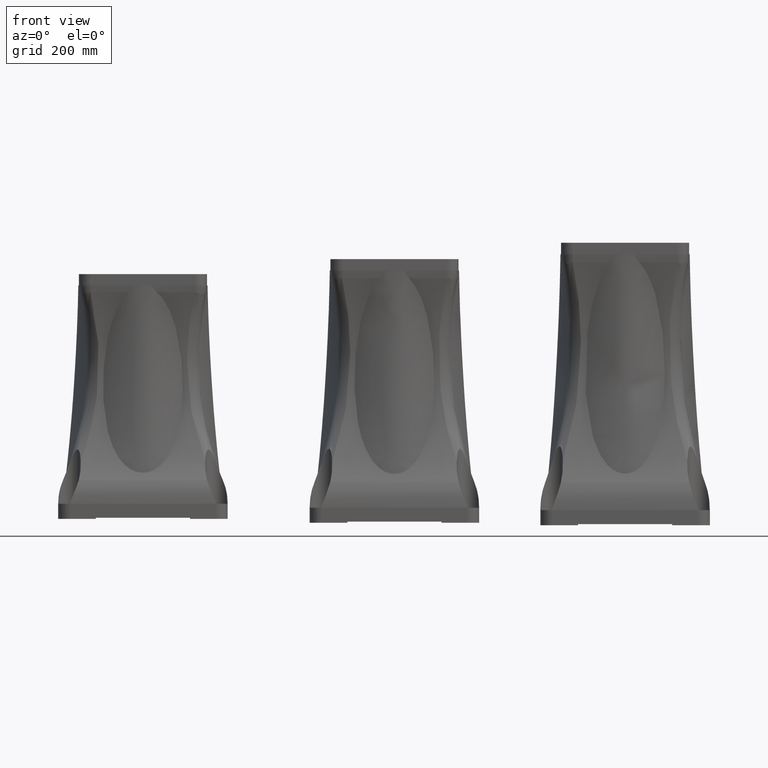
[diagram: clean part render]
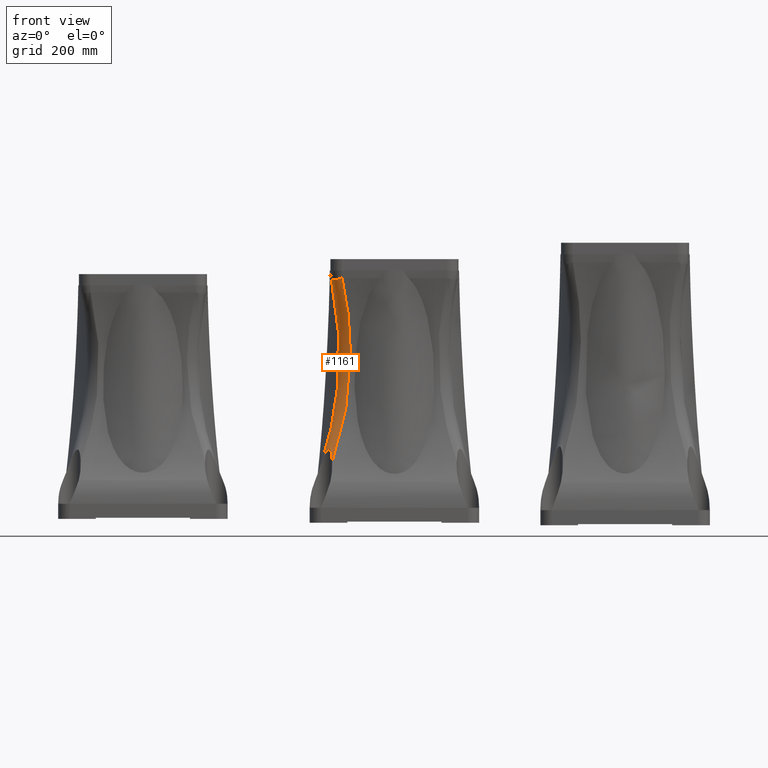
[diagram: same view with one face highlighted and labeled with its STEP entity id]
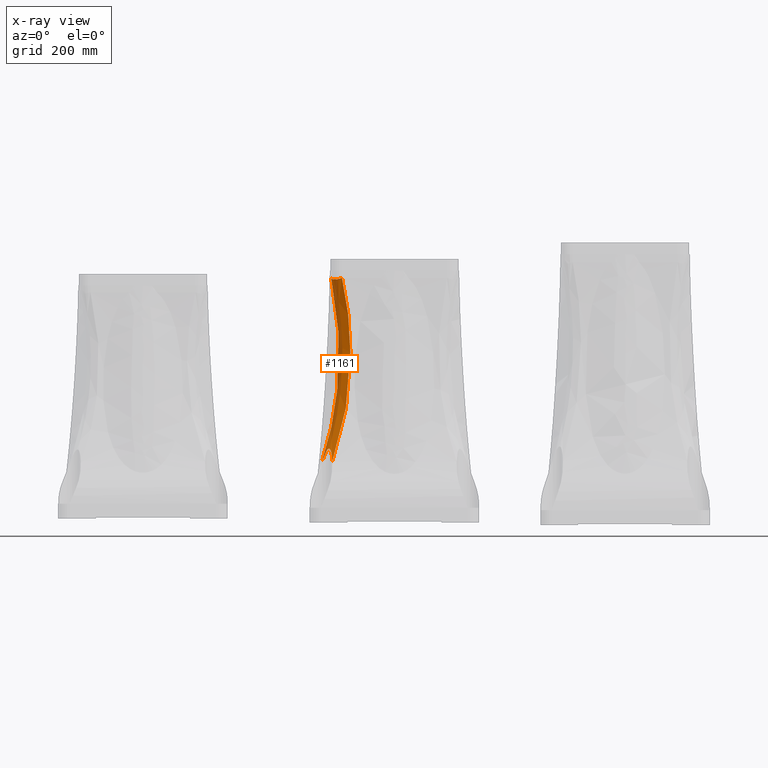
[diagram: x-ray of the same camera — body ghosted, the highlighted face saturated]
A machine part, front view. The second image highlights one B-rep face of the part: STEP entity #1161.
The next image is the same camera in x-ray: the body ghosted, the highlighted face saturated — about 0% of this face is hidden behind the body in this view.
In plain terms, the highlighted face is a freeform B-spline surface patch.
Its self-contained STEP definition (entity closure, byte-faithful):
#1161=ADVANCED_FACE('',(#1954),#1955,.T.);
#1954=FACE_OUTER_BOUND('',#5366,.T.);
#1955=(B_SPLINE_SURFACE(3,2,((#5368,#5369,#5370),(#5371,#5372,#5373),(#5374,#5375,#5376),(#5377,#5378,#5379),(#5380,#5381,#5382),(#5383,#5384,#5385),(#5386,#5387,#5388),(#5389,#5390,#5391),(#5392,#5393,#5394),(#5395,#5396,#5397),(#5398,#5399,#5400),(#5401,#5402,#5403),(#5404,#5405,#5406),(#5407,#5408,#5409),(#5410,#5411,#5412),(#5413,#5414,#5415),(#5416,#5417,#5418),(#5419,#5420,#5421)),.UNSPECIFIED.,.F.,.F.,.F.)B_SPLINE_SURFACE_WITH_KNOTS((4,2,2,2,2,2,2,2,4),(3,3),(2.85118516163704,2.94171701502913,3.03224886842121,3.1227807218133,3.21331257520538,3.30384442859746,3.39437628198955,3.48490813538164,3.57543998877372),(0.0,1.0),.UNSPECIFIED.)RATIONAL_B_SPLINE_SURFACE(((1.0,0.735524346726946,1.0),(1.0,0.729895245384475,1.0),(1.0,0.724982392740446,1.0),(1.0,0.716836658748623,1.0),(1.0,0.713605633498388,1.0),(1.0,0.709003582062472,1.0),(1.0,0.707633127838038,1.0),(1.0,0.706830620041969,1.0),(1.0,0.707398673173335,1.0),(1.0,0.710441186489719,1.0),(1.0,0.712915253269928,1.0),(1.0,0.719631733579047,1.0),(1.0,0.723873378671773,1.0),(1.0,0.733898931885056,1.0),(1.0,0.739681912317829,1.0),(1.0,0.75250234208449,1.0),(1.0,0.759538584887683,1.0),(1.0,0.76704190525233,1.0)))BOUNDED_SURFACE()REPRESENTATION_ITEM('')GEOMETRIC_REPRESENTATION_ITEM()SURFACE());
#5366=EDGE_LOOP('',(#11788,#11789,#11790,#11791));
#5368=CARTESIAN_POINT('',(38.681636363636,-149.718101010101,1310.30847953715));
#5369=CARTESIAN_POINT('',(40.8598101155103,-176.283745440045,1300.18306664098));
#5370=CARTESIAN_POINT('',(67.4254545454541,-178.461919191919,1310.30847953715));
#5371=CARTESIAN_POINT('',(43.0021749492931,-145.138330108087,1290.22411433168));
#5372=CARTESIAN_POINT('',(44.8238969856286,-172.319658569694,1280.63332829338));
#5373=CARTESIAN_POINT('',(72.0052254482312,-174.141380606326,1290.22411433198));
#5374=CARTESIAN_POINT('',(46.6678271429793,-141.252738784,1269.86803759306));
#5375=CARTESIAN_POINT('',(48.1108398140159,-169.032715741595,1261.15140264555));
#5376=CARTESIAN_POINT('',(75.8908167715553,-170.475728412578,1269.86803759308));
#5377=CARTESIAN_POINT('',(52.6594499233879,-134.901618636761,1228.77863922158));
#5378=CARTESIAN_POINT('',(53.4770108513772,-163.666544704121,1221.97929400054));
#5379=CARTESIAN_POINT('',(82.2419369187939,-164.484105632165,1228.77863922157));
#5380=CARTESIAN_POINT('',(54.9853974439694,-132.436114265423,1208.04543962679));
#5381=CARTESIAN_POINT('',(55.5305415850429,-161.613013970401,1202.37829411545));
#5382=CARTESIAN_POINT('',(84.7074412901318,-162.158158111489,1208.04543962556));
#5383=CARTESIAN_POINT('',(58.2785246490973,-128.945399427036,1166.37176060933));
#5384=CARTESIAN_POINT('',(58.4446915223699,-158.698864033297,1163.02945432093));
#5385=CARTESIAN_POINT('',(88.1981561285189,-158.865030906555,1166.37176061056));
#5386=CARTESIAN_POINT('',(59.2457006479065,-127.920192868113,1145.43132782972));
#5387=CARTESIAN_POINT('',(59.290469493708,-157.853086061958,1143.38188610753));
#5388=CARTESIAN_POINT('',(89.223362687442,-157.897854907648,1145.43132782972));
#5389=CARTESIAN_POINT('',(59.8133601816711,-127.318473763645,1103.51469311311));
#5390=CARTESIAN_POINT('',(59.7900943591624,-157.353461196281,1103.97490039268));
#5391=CARTESIAN_POINT('',(89.8250817919101,-157.330195373884,1103.51469311311));
#5392=CARTESIAN_POINT('',(59.413843081199,-127.741961889649,1082.5385380875));
#5393=CARTESIAN_POINT('',(59.4413269609444,-157.702228594778,1084.32076793338));
#5394=CARTESIAN_POINT('',(89.4015936659058,-157.729712474356,1082.53853808749));
#5395=CARTESIAN_POINT('',(57.2513855738111,-130.03416684715,1040.72226251829));
#5396=CARTESIAN_POINT('',(57.5337292295651,-159.609826325823,1044.93664380621));
#5397=CARTESIAN_POINT('',(87.1093887084047,-159.892169981743,1040.7222625183));
#5398=CARTESIAN_POINT('',(55.4884475869518,-131.902881113051,1019.88218877139));
#5399=CARTESIAN_POINT('',(55.9847700934847,-161.158785461901,1025.30985954175));
#5400=CARTESIAN_POINT('',(85.2406744425042,-161.655107968601,1019.88218877141));
#5401=CARTESIAN_POINT('',(50.6135844736126,-137.070236013861,978.5087652107));
#5402=CARTESIAN_POINT('',(51.6434817187372,-165.500073836986,986.045608574042));
#5403=CARTESIAN_POINT('',(80.0733195416939,-166.529971081945,978.508765210675));
#5404=CARTESIAN_POINT('',(47.5016648031817,-140.368870864367,957.975461702256));
#5405=CARTESIAN_POINT('',(48.8725201396516,-168.271035415788,966.502304868515));
#5406=CARTESIAN_POINT('',(76.7746846911882,-169.641890752148,957.975461703467));
#5407=CARTESIAN_POINT('',(39.9543232609484,-148.369052898765,917.383755873289));
#5408=CARTESIAN_POINT('',(42.0502097699338,-175.093345785735,927.51778076836));
#5409=CARTESIAN_POINT('',(68.7745026567895,-177.189232294832,917.383755872078));
#5410=CARTESIAN_POINT('',(35.5189098360717,-153.070591128724,897.32539898312));
#5411=CARTESIAN_POINT('',(38.0294906340387,-179.114064921575,908.15539610147));
#5412=CARTESIAN_POINT('',(64.0729644268308,-181.624645719187,897.325398984274));
#5413=CARTESIAN_POINT('',(25.3609057634889,-163.838075446851,857.847874011953));
#5414=CARTESIAN_POINT('',(28.6807999599671,-188.46275559553,869.695404720074));
#5415=CARTESIAN_POINT('',(53.3054801087033,-191.782649792363,857.847874010799));
#5416=CARTESIAN_POINT('',(19.6383560424505,-169.90397814956,838.428838748744));
#5417=CARTESIAN_POINT('',(23.3895940935031,-193.753961462234,850.657140619556));
#5418=CARTESIAN_POINT('',(47.2395774063483,-197.505199512894,838.428838749378));
#5419=CARTESIAN_POINT('',(13.2955923422249,-176.627307672796,819.408746809491));
#5420=CARTESIAN_POINT('',(17.3833307548412,-199.760224800713,831.666677911168));
#5421=CARTESIAN_POINT('',(40.5162478827584,-203.84796321333,819.408746809491));
#11788=ORIENTED_EDGE('',*,*,#14921,.F.);
#11789=ORIENTED_EDGE('',*,*,#14853,.T.);
#11790=ORIENTED_EDGE('',*,*,#14891,.F.);
#11791=ORIENTED_EDGE('',*,*,#14860,.T.);
#14853=EDGE_CURVE('',#16412,#16410,#16413,.T.);
#14860=EDGE_CURVE('',#16425,#16418,#16426,.T.);
#14891=EDGE_CURVE('',#16425,#16410,#16479,.F.);
#14921=EDGE_CURVE('',#16412,#16418,#16527,.F.);
#16410=VERTEX_POINT('',#22321);
#16412=VERTEX_POINT('',#22334);
#16413=B_SPLINE_CURVE_WITH_KNOTS('',3,(#22335,#22336,#22337,#22338,#22339,#22340,#22341,#22342,#22343,#22344,#22345,#22346,#22347,#22348,#22349,#22350,#22351,#22352,#22353,#22354,#22355,#22356,#22357,#22358,#22359,#22360,#22361,#22362,#22363,#22364,#22365,#22366,#22367,#22368,#22369,#22370,#22371,#22372,#22373,#22374,#22375,#22376,#22377,#22378,#22379,#22380,#22381,#22382,#22383,#22384,#22385,#22386,#22387,#22388,#22389,#22390,#22391,#22392),.UNSPECIFIED.,.F.,.F.,(4,2,2,2,2,2,2,2,2,2,2,2,2,2,2,2,2,2,2,2,2,2,2,2,2,2,2,2,4),(0.0,0.010518583936833,0.0157778759052497,0.0210371678736663,0.026296459842083,0.0289261058262913,0.0315557518104996,0.034185397794708,0.0368150437789163,0.0381298667710205,0.0394446897631248,0.0401021012591769,0.040759512755229,0.0414169242512811,0.0420743357473333,0.0433891587394375,0.0440465702354896,0.0447039817315417,0.0460188047236459,0.0473336277157501,0.0499632736999586,0.051278096692063,0.0525929196841673,0.0552225656683761,0.0578522116525849,0.0631115036210024,0.0683707955894199,0.0736300875578374,0.0841486714946725),.UNSPECIFIED.);
#16418=VERTEX_POINT('',#22431);
#16425=VERTEX_POINT('',#22468);
#16426=B_SPLINE_CURVE_WITH_KNOTS('',3,(#22469,#22470,#22471,#22472,#22473,#22474,#22475,#22476,#22477,#22478,#22479,#22480,#22481,#22482,#22483,#22484,#22485,#22486),.UNSPECIFIED.,.F.,.F.,(4,2,2,2,2,2,2,2,4),(0.0,0.125,0.25,0.375,0.5,0.625,0.75,0.875,1.0),.UNSPECIFIED.);
#16479=B_SPLINE_CURVE_WITH_KNOTS('',3,(#23326,#23327,#23328,#23329,#23330,#23331,#23332,#23333,#23334,#23335,#23336,#23337,#23338,#23339,#23340,#23341,#23342,#23343,#23344,#23345,#23346,#23347,#23348,#23349,#23350,#23351,#23352,#23353,#23354,#23355,#23356,#23357,#23358,#23359,#23360,#23361,#23362,#23363,#23364,#23365,#23366,#23367,#23368,#23369,#23370,#23371,#23372,#23373,#23374,#23375,#23376,#23377,#23378,#23379,#23380,#23381),.UNSPECIFIED.,.F.,.F.,(4,1,1,1,1,1,1,1,1,1,1,1,1,1,1,1,1,1,1,1,1,1,1,1,1,1,1,1,1,1,1,1,1,1,1,1,1,1,1,1,1,1,1,1,1,1,1,1,1,1,1,1,1,4),(0.0,0.00529063514612186,0.0105765941359454,0.0158578336886446,0.021134310397057,0.0264059807382307,0.0316728010839916,0.0369347277115177,0.0421917168139229,0.0474437245108536,0.0526907068590799,0.0579326198630985,0.0631694194857333,0.0684010616587336,0.0736275022933724,0.0788486972910361,0.084064602553807,0.0892751739950451,0.0944803675499423,0.0996801391860847,0.104874444913981,0.110063240797588,0.115246482964808,0.12042412761798,0.12559613104433,0.157103079480561,0.18848459396079,0.219732594439219,0.25083899095196,0.313499602301707,0.375805432599854,0.438296458357231,0.500596002103906,0.562970844708656,0.625308752241972,0.687619123287236,0.750044433091847,0.781156062052461,0.812342338449727,0.843596467311371,0.874911647566623,0.884469286218178,0.894038484083914,0.903619023651562,0.913210686564056,0.922813253808341,0.932426505904746,0.942050223096839,0.95168418554164,0.96132817350008,0.970981967527611,0.980645348664858,0.990318098628171,1.0),.UNSPECIFIED.);
#16527=B_SPLINE_CURVE_WITH_KNOTS('',3,(#23884,#23885,#23886,#23887,#23888,#23889,#23890,#23891,#23892,#23893,#23894,#23895,#23896,#23897,#23898,#23899,#23900,#23901,#23902,#23903,#23904,#23905,#23906,#23907,#23908,#23909,#23910,#23911,#23912,#23913,#23914,#23915,#23916,#23917,#23918,#23919,#23920,#23921,#23922,#23923,#23924,#23925,#23926,#23927,#23928,#23929,#23930,#23931,#23932,#23933,#23934,#23935,#23936,#23937,#23938,#23939),.UNSPECIFIED.,.F.,.F.,(4,1,1,1,1,1,1,1,1,1,1,1,1,1,1,1,1,1,1,1,1,1,1,1,1,1,1,1,1,1,1,1,1,1,1,1,1,1,1,1,1,1,1,1,1,1,1,1,1,1,1,1,1,4),(0.0,0.00524507726343944,0.0104875340875135,0.0157273361528853,0.020964449047384,0.026198838274836,0.0314304692639054,0.0366593073769448,0.0418853179188581,0.0471084661459542,0.0523287172748197,0.0575460364911792,0.0627603889587683,0.0679717398281932,0.0731800542457994,0.0783852973625244,0.0835874343427515,0.088786430373161,0.093982250671554,0.0991748604956906,0.104364225152096,0.109550310004863,0.11473308048444,0.1199125020964,0.125088540430192,0.156399877880119,0.18765270680406,0.218840256951725,0.249955754647193,0.312375429242257,0.374691434693478,0.43702321753237,0.499404184613704,0.561698089364869,0.62419475447653,0.686495923880842,0.749161196460416,0.780264450922721,0.811511428509262,0.842894004252029,0.874404056200089,0.883956141601567,0.893527433787933,0.903117656510572,0.91272653270966,0.922353784739887,0.93199913459688,0.941662304144203,0.951343015340774,0.961040990468597,0.970755952360631,0.980487624628655,0.990235731891005,1.0),.UNSPECIFIED.);
#22321=CARTESIAN_POINT('',(41.4741390020655,-202.944292346059,822.134007741496));
#22334=CARTESIAN_POINT('',(14.1992632094848,-175.66941655349,822.134007741465));
#22335=CARTESIAN_POINT('',(14.1992603863855,-175.669416306826,822.134008679365));
#22336=CARTESIAN_POINT('',(15.2983976024665,-175.765451912083,825.467695184137));
#22337=CARTESIAN_POINT('',(16.4400714245778,-175.92485403223,828.780951608506));
#22338=CARTESIAN_POINT('',(18.2519105353001,-176.298546756877,833.704136932334));
#22339=CARTESIAN_POINT('',(18.872626414973,-176.445781844506,835.337318407788));
#22340=CARTESIAN_POINT('',(20.1589424287635,-176.798232081403,838.582792699587));
#22341=CARTESIAN_POINT('',(20.8252234425183,-177.003537646271,840.197184800565));
#22342=CARTESIAN_POINT('',(22.2171737899968,-177.491972602533,843.385298173591));
#22343=CARTESIAN_POINT('',(22.9419431259925,-177.774307686806,844.958643087557));
#22344=CARTESIAN_POINT('',(24.0978456492609,-178.285036652444,847.269922547955));
#22345=CARTESIAN_POINT('',(24.4956551096926,-178.470452451431,848.03372140639));
#22346=CARTESIAN_POINT('',(25.3176221445874,-178.877702449305,849.53053797002));
#22347=CARTESIAN_POINT('',(25.7413070476731,-179.099197306261,850.263065808589));
#22348=CARTESIAN_POINT('',(26.6236772037897,-179.590513610198,851.684732237417));
#22349=CARTESIAN_POINT('',(27.0821450881215,-179.860047413281,852.374135233139));
#22350=CARTESIAN_POINT('',(28.0510940391723,-180.469818465352,853.688912932043));
#22351=CARTESIAN_POINT('',(28.5608077728255,-180.809038909561,854.315221577578));
#22352=CARTESIAN_POINT('',(29.3920997604112,-181.407458235636,855.172999697328));
#22353=CARTESIAN_POINT('',(29.6779058193154,-181.620383894868,855.441872922234));
#22354=CARTESIAN_POINT('',(30.2632112100235,-182.07420931563,855.927485482971));
#22355=CARTESIAN_POINT('',(30.5637765521565,-182.315828710187,856.145500847685));
#22356=CARTESIAN_POINT('',(31.030473183364,-182.707547186873,856.423036538811));
#22357=CARTESIAN_POINT('',(31.1888467537419,-182.843203100036,856.507171227001));
#22358=CARTESIAN_POINT('',(31.5050525207422,-183.119977416951,856.653253113084));
#22359=CARTESIAN_POINT('',(31.6636385593568,-183.26171821305,856.715686628183));
#22360=CARTESIAN_POINT('',(31.9818614920844,-183.552445310372,856.817615389194));
#22361=CARTESIAN_POINT('',(32.141498321551,-183.701431041508,856.857112385805));
#22362=CARTESIAN_POINT('',(32.4619177692879,-184.00727004393,856.911184681904));
#22363=CARTESIAN_POINT('',(32.6231487828262,-184.164623258394,856.925568616855));
#22364=CARTESIAN_POINT('',(33.0954226732028,-184.635979905327,856.928970753495));
#22365=CARTESIAN_POINT('',(33.3993604062128,-184.953289338789,856.87936140506));
#22366=CARTESIAN_POINT('',(33.8400188664827,-185.433556142605,856.732523401915));
#22367=CARTESIAN_POINT('',(33.9849112433301,-185.595022378185,856.67109210564));
#22368=CARTESIAN_POINT('',(34.2634503664906,-185.912020521267,856.528603246319));
#22369=CARTESIAN_POINT('',(34.3978939500974,-186.06839140767,856.447389458827));
#22370=CARTESIAN_POINT('',(34.7885309875067,-186.531920885414,856.17754941359));
#22371=CARTESIAN_POINT('',(35.0321097188651,-186.833531230958,855.962887815263));
#22372=CARTESIAN_POINT('',(35.4925208188836,-187.425074046765,855.478502275391));
#22373=CARTESIAN_POINT('',(35.7061707596332,-187.710961153619,855.211970973549));
#22374=CARTESIAN_POINT('',(36.3037967576875,-188.538145903252,854.366276522283));
#22375=CARTESIAN_POINT('',(36.648750466521,-189.054036296022,853.738194929789));
#22376=CARTESIAN_POINT('',(37.1163688368281,-189.795234413986,852.736620118547));
#22377=CARTESIAN_POINT('',(37.2634793827425,-190.036415966431,852.392793176208));
#22378=CARTESIAN_POINT('',(37.5405588863087,-190.504355524559,851.696448761414));
#22379=CARTESIAN_POINT('',(37.6710310012885,-190.731915817379,851.342834777366));
#22380=CARTESIAN_POINT('',(38.0427222427425,-191.399041992363,850.268749618228));
#22381=CARTESIAN_POINT('',(38.2644436336095,-191.823239444317,849.535191593798));
#22382=CARTESIAN_POINT('',(38.6706305749575,-192.642760666125,848.043330775139));
#22383=CARTESIAN_POINT('',(38.8549467645016,-193.037962253027,847.284925364393));
#22384=CARTESIAN_POINT('',(39.364731727933,-194.190728839014,844.981366662152));
#22385=CARTESIAN_POINT('',(39.6476987189225,-194.915999850313,843.408327079507));
#22386=CARTESIAN_POINT('',(40.1378222425489,-196.311395900913,840.213811965756));
#22387=CARTESIAN_POINT('',(40.3433250017318,-196.977854570565,838.599413656485));
#22388=CARTESIAN_POINT('',(40.6964279817542,-198.265487615258,835.351475127478));
#22389=CARTESIAN_POINT('',(40.8439359083708,-198.886871114088,833.716862517446));
#22390=CARTESIAN_POINT('',(41.2183092975438,-200.700730826479,828.788922917531));
#22391=CARTESIAN_POINT('',(41.3779828167531,-201.843775079054,825.47188944527));
#22392=CARTESIAN_POINT('',(41.47413924873,-202.944295169159,822.134008679396));
#22431=CARTESIAN_POINT('',(38.6816363636367,-149.718101010101,1310.30847953715));
#22468=CARTESIAN_POINT('',(67.4254545454548,-178.461919191919,1310.30847953715));
#22469=CARTESIAN_POINT('',(67.4254545454541,-178.461919191919,1310.30847953715));
#22470=CARTESIAN_POINT('',(65.7971480233945,-178.328410873094,1309.68785556166));
#22471=CARTESIAN_POINT('',(64.1139604988439,-178.052208769457,1309.10369049946));
#22472=CARTESIAN_POINT('',(60.7099951773555,-177.174267342029,1308.0549128197));
#22473=CARTESIAN_POINT('',(58.9895201037936,-176.572126306583,1307.59059267592));
#22474=CARTESIAN_POINT('',(55.604619652207,-175.029290876028,1306.82578729016));
#22475=CARTESIAN_POINT('',(53.9407441788363,-174.088406376235,1306.52560929203));
#22476=CARTESIAN_POINT('',(50.7710868862354,-171.892656225853,1306.12125362646));
#22477=CARTESIAN_POINT('',(49.2659460181075,-170.637949012184,1306.01727629368));
#22478=CARTESIAN_POINT('',(46.5056065433711,-167.877609537447,1306.01727629368));
#22479=CARTESIAN_POINT('',(45.2508993297017,-166.372468669319,1306.12125362646));
#22480=CARTESIAN_POINT('',(43.0551491793202,-163.202811376719,1306.52560929203));
#22481=CARTESIAN_POINT('',(42.1142646795269,-161.538935903348,1306.82578729016));
#22482=CARTESIAN_POINT('',(40.571429248972,-158.154035451761,1307.59059267592));
#22483=CARTESIAN_POINT('',(39.9692882135255,-156.433560378199,1308.0549128197));
#22484=CARTESIAN_POINT('',(39.0913467860977,-153.029595056711,1309.10369049946));
#22485=CARTESIAN_POINT('',(38.8151446824614,-151.34640753216,1309.68785556166));
#22486=CARTESIAN_POINT('',(38.681636363636,-149.718101010101,1310.30847953715));
#23326=CARTESIAN_POINT('',(41.4741365163293,-202.94429186602,822.134009197449));
#23327=CARTESIAN_POINT('',(41.7519338577747,-202.682215523882,822.931182574305));
#23328=CARTESIAN_POINT('',(42.3072830079927,-202.15829447719,824.524824742044));
#23329=CARTESIAN_POINT('',(43.1313104403139,-201.380880766302,826.919870974036));
#23330=CARTESIAN_POINT('',(43.9482855781093,-200.610111614123,829.316858765355));
#23331=CARTESIAN_POINT('',(44.7575902748866,-199.846572313641,831.716128574979));
#23332=CARTESIAN_POINT('',(45.5593899414664,-199.090110706677,834.117504032089));
#23333=CARTESIAN_POINT('',(46.3536403177592,-198.340771443374,836.520947095968));
#23334=CARTESIAN_POINT('',(47.1403532483976,-197.598545986869,838.926382750932));
#23335=CARTESIAN_POINT('',(47.9195255654206,-196.863439509121,841.333745922769));
#23336=CARTESIAN_POINT('',(48.6911581178707,-196.135452992039,843.742968932396));
#23337=CARTESIAN_POINT('',(49.4552506799159,-195.414588017999,846.153984860514));
#23338=CARTESIAN_POINT('',(50.2118033133009,-194.700845489307,848.566726654818));
#23339=CARTESIAN_POINT('',(50.9608160027944,-193.994225972161,850.981127376353));
#23340=CARTESIAN_POINT('',(51.7022887537334,-193.29472960602,853.397120141035));
#23341=CARTESIAN_POINT('',(52.4362215659152,-192.60235612933,855.814638142668));
#23342=CARTESIAN_POINT('',(53.1626144406183,-191.917104874141,858.233614654232));
#23343=CARTESIAN_POINT('',(53.881467378588,-191.238974769231,860.653983034497));
#23344=CARTESIAN_POINT('',(54.5927803810767,-190.567964340617,863.075676734859));
#23345=CARTESIAN_POINT('',(55.2965534477069,-189.904071714285,865.498629299736));
#23346=CARTESIAN_POINT('',(55.9927865839584,-189.247294612976,867.922774392314));
#23347=CARTESIAN_POINT('',(56.6814797734005,-188.597630374787,870.348045725192));
#23348=CARTESIAN_POINT('',(57.3626330811226,-187.955075890867,872.774377345404));
#23349=CARTESIAN_POINT('',(58.0362462683485,-187.319627844759,875.201702598721));
#23350=CARTESIAN_POINT('',(58.7023202284039,-186.691281828018,877.629958014891));
#23351=CARTESIAN_POINT('',(60.4788053185414,-185.015379097131,884.18284090244));
#23352=CARTESIAN_POINT('',(63.2613987100244,-182.390079248022,894.892509350936));
#23353=CARTESIAN_POINT('',(66.8563448323372,-178.998442962868,909.825078868693));
#23354=CARTESIAN_POINT('',(70.1822764559948,-175.860947457991,924.805290947472));
#23355=CARTESIAN_POINT('',(74.2776813011409,-171.997725704049,944.920707185032));
#23356=CARTESIAN_POINT('',(78.7453526970005,-167.782187108637,970.273623775984));
#23357=CARTESIAN_POINT('',(83.0662371221201,-163.706743205329,1001.03614227033));
#23358=CARTESIAN_POINT('',(86.3218062891192,-160.634630379352,1031.98495943593));
#23359=CARTESIAN_POINT('',(88.5154211609036,-158.565988203555,1063.12153926435));
#23360=CARTESIAN_POINT('',(89.6364178645511,-157.507661180894,1094.34020208907));
#23361=CARTESIAN_POINT('',(89.6863866160682,-157.461298101963,1125.59871784112));
#23362=CARTESIAN_POINT('',(88.6621612136119,-158.42677318113,1156.83366940793));
#23363=CARTESIAN_POINT('',(86.9183772664497,-160.072507855584,1182.77184842779));
#23364=CARTESIAN_POINT('',(84.9900427320327,-161.891406762947,1203.44228086309));
#23365=CARTESIAN_POINT('',(83.2788861161875,-163.505527258537,1218.8960196137));
#23366=CARTESIAN_POINT('',(81.2995902114811,-165.372922835645,1234.32347849445));
#23367=CARTESIAN_POINT('',(79.5739490970819,-167.001094644419,1246.13953347538));
#23368=CARTESIAN_POINT('',(78.2747904564876,-168.226688762005,1254.3757576728));
#23369=CARTESIAN_POINT('',(77.5108719870539,-168.947313436762,1259.05571093394));
#23370=CARTESIAN_POINT('',(76.7215222156483,-169.691916316681,1263.73351319061));
#23371=CARTESIAN_POINT('',(75.9067390755703,-170.460514295717,1268.40880116326));
#23372=CARTESIAN_POINT('',(75.0665229092208,-171.253119533278,1273.08120135013));
#23373=CARTESIAN_POINT('',(74.2008743689594,-172.069739627618,1277.7503423351));
#23374=CARTESIAN_POINT('',(73.3097904425402,-172.910381816917,1282.41584965343));
#23375=CARTESIAN_POINT('',(72.3932824835755,-173.775035863681,1287.07735459654));
#23376=CARTESIAN_POINT('',(71.4513079624132,-174.663738310356,1291.73446467595));
#23377=CARTESIAN_POINT('',(70.4840257993899,-175.576332135361,1296.38687371095));
#23378=CARTESIAN_POINT('',(69.4908419414162,-176.513365051526,1301.03395103324));
#23379=CARTESIAN_POINT('',(68.4739766115195,-177.472731981386,1305.67627728458));
#23380=CARTESIAN_POINT('',(67.7750720545394,-178.132086201505,1308.76392547812));
#23381=CARTESIAN_POINT('',(67.4254545454543,-178.461919191919,1310.30847953715));
#23884=CARTESIAN_POINT('',(38.6816363636361,-149.718101010101,1310.30847953715));
#23885=CARTESIAN_POINT('',(38.860869319466,-149.528115796703,1309.47198472403));
#23886=CARTESIAN_POINT('',(39.2192456863835,-149.148240286475,1307.79941301042));
#23887=CARTESIAN_POINT('',(39.7481117197703,-148.587665890256,1305.28731419018));
#23888=CARTESIAN_POINT('',(40.2704350636566,-148.034035246511,1302.77370380715));
#23889=CARTESIAN_POINT('',(40.7855985693853,-147.488000654761,1300.25836062633));
#23890=CARTESIAN_POINT('',(41.2937636288423,-146.949387464323,1297.74141937902));
#23891=CARTESIAN_POINT('',(41.7948836185032,-146.418242435662,1295.22291947662));
#23892=CARTESIAN_POINT('',(42.2889680430004,-145.894553048328,1292.70292583374));
#23893=CARTESIAN_POINT('',(42.7760118125501,-145.378322653694,1290.18149651289));
#23894=CARTESIAN_POINT('',(43.2560141774856,-144.869550353702,1287.65869138135));
#23895=CARTESIAN_POINT('',(43.7289736581685,-144.368236388036,1285.13456978749));
#23896=CARTESIAN_POINT('',(44.1948894017228,-143.874380691798,1282.609191177));
#23897=CARTESIAN_POINT('',(44.6537608180508,-143.387983281664,1280.08261492203));
#23898=CARTESIAN_POINT('',(45.1055876764915,-142.9090441525,1277.55490036106));
#23899=CARTESIAN_POINT('',(45.5503700790954,-142.437563305038,1275.02610678244));
#23900=CARTESIAN_POINT('',(45.9881084669015,-141.973540738461,1272.49629342286));
#23901=CARTESIAN_POINT('',(46.4188036172711,-141.516976452427,1269.96551946235));
#23902=CARTESIAN_POINT('',(46.8424566437908,-141.067870446375,1267.43384401842));
#23903=CARTESIAN_POINT('',(47.2590689945987,-140.626222720276,1264.90132614729));
#23904=CARTESIAN_POINT('',(47.6686424542357,-140.192033272334,1262.36802481761));
#23905=CARTESIAN_POINT('',(48.0711791327449,-139.765302107412,1259.83399898723));
#23906=CARTESIAN_POINT('',(48.4666815020027,-139.346029205671,1257.29930729577));
#23907=CARTESIAN_POINT('',(48.8551522558,-138.934214639465,1254.76400918982));
#23908=CARTESIAN_POINT('',(49.2365948268906,-138.529858137524,1252.22816070661));
#23909=CARTESIAN_POINT('',(50.2412741609578,-137.464855640297,1245.42237623071));
#23910=CARTESIAN_POINT('',(51.7704352030095,-135.844130529188,1234.3249504919));
#23911=CARTESIAN_POINT('',(53.6377890189159,-133.864921476508,1218.89814173229));
#23912=CARTESIAN_POINT('',(55.2520126993737,-132.1537092156,1203.44376820103));
#23913=CARTESIAN_POINT('',(57.0709243631197,-130.225277189392,1182.77342925342));
#23914=CARTESIAN_POINT('',(58.7167381066266,-128.481466599934,1156.83460895057));
#23915=CARTESIAN_POINT('',(59.6822272114499,-127.457194531713,1125.60068211701));
#23916=CARTESIAN_POINT('',(59.6359125139047,-127.507119003193,1094.34122714664));
#23917=CARTESIAN_POINT('',(58.5776669643249,-128.628032785782,1063.12349933827));
#23918=CARTESIAN_POINT('',(56.5090026986547,-130.821650630282,1031.98589539454));
#23919=CARTESIAN_POINT('',(53.4370116396165,-134.077117278988,1001.03783961992));
#23920=CARTESIAN_POINT('',(49.3614817020467,-138.398058875747,970.274382479495));
#23921=CARTESIAN_POINT('',(45.1460597199568,-142.86565551466,944.921972408157));
#23922=CARTESIAN_POINT('',(41.2828363746423,-146.960997275639,924.806457114864));
#23923=CARTESIAN_POINT('',(38.1454749752839,-150.286827524861,909.826739015587));
#23924=CARTESIAN_POINT('',(34.7537528299938,-153.881897506153,894.893655590247));
#23925=CARTESIAN_POINT('',(31.9593536977415,-156.843701639656,883.494120631365));
#23926=CARTESIAN_POINT('',(29.9231579400564,-159.002097238564,875.571964379892));
#23927=CARTESIAN_POINT('',(28.7465540292744,-160.249364919619,871.091481317131));
#23928=CARTESIAN_POINT('',(27.5457121403743,-161.522343421738,866.614498030537));
#23929=CARTESIAN_POINT('',(26.3206111138612,-162.821036271635,862.141424497417));
#23930=CARTESIAN_POINT('',(25.0712360760239,-164.145442734153,857.672680572838));
#23931=CARTESIAN_POINT('',(23.7975772074699,-165.495562320193,853.208684406486));
#23932=CARTESIAN_POINT('',(22.4996260950813,-166.871397845747,848.74985821802));
#23933=CARTESIAN_POINT('',(21.1773917831552,-168.272938628219,844.296616046361));
#23934=CARTESIAN_POINT('',(19.8308402309078,-169.70022480777,839.849406335405));
#23935=CARTESIAN_POINT('',(18.4601211464593,-171.153106270392,835.408552703448));
#23936=CARTESIAN_POINT('',(17.0647192830079,-172.632144817728,830.974848963467));
#23937=CARTESIAN_POINT('',(15.6466300980071,-174.135238542786,826.547332218051));
#23938=CARTESIAN_POINT('',(14.6819854767372,-175.157743248783,823.605928929413));
#23939=CARTESIAN_POINT('',(14.1992636895267,-175.669419039252,822.134009197429));